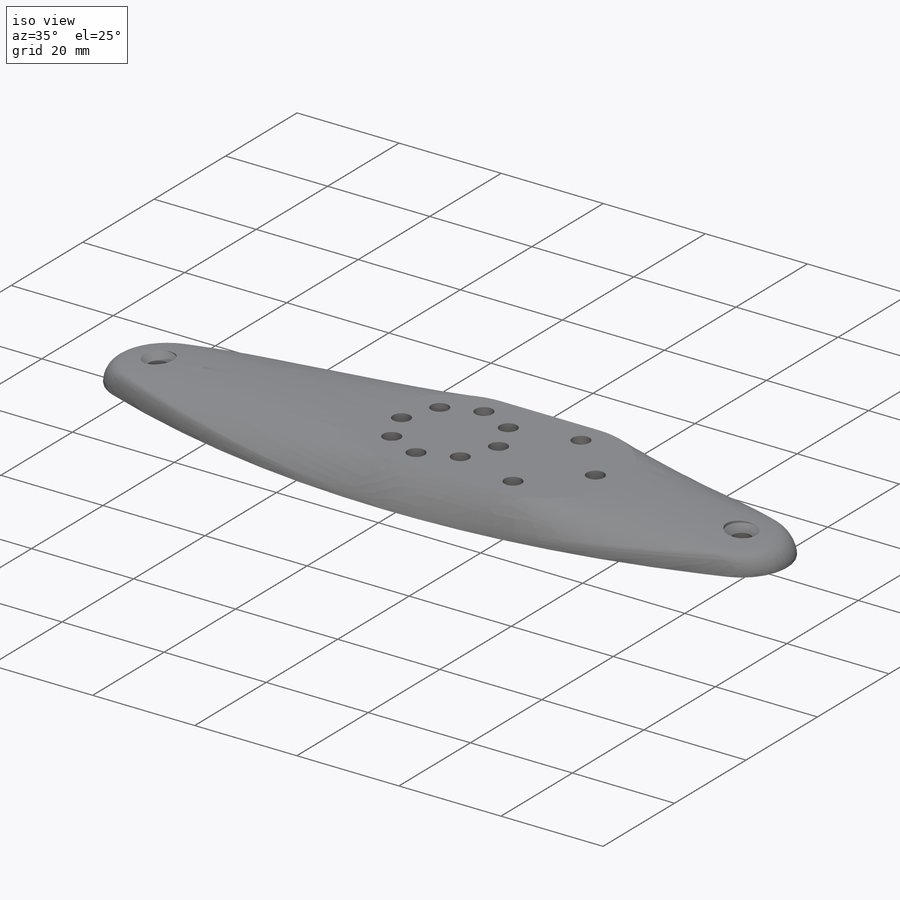
[diagram: iso view]
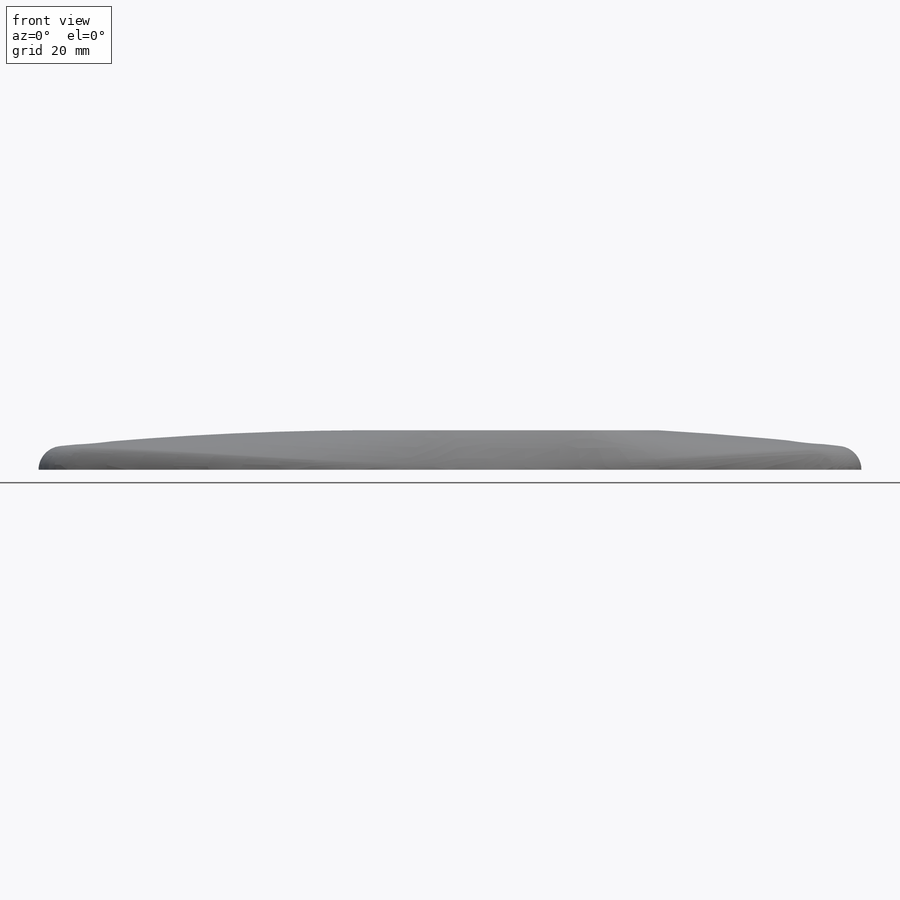
[diagram: front view]
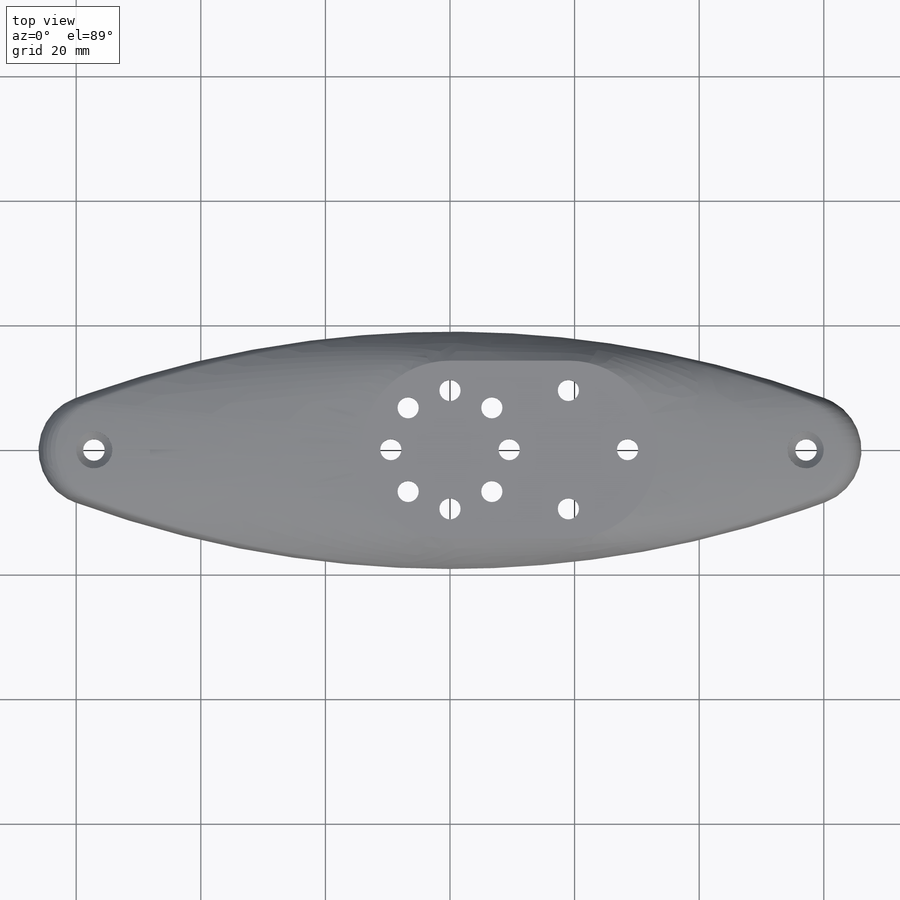
[diagram: top view]
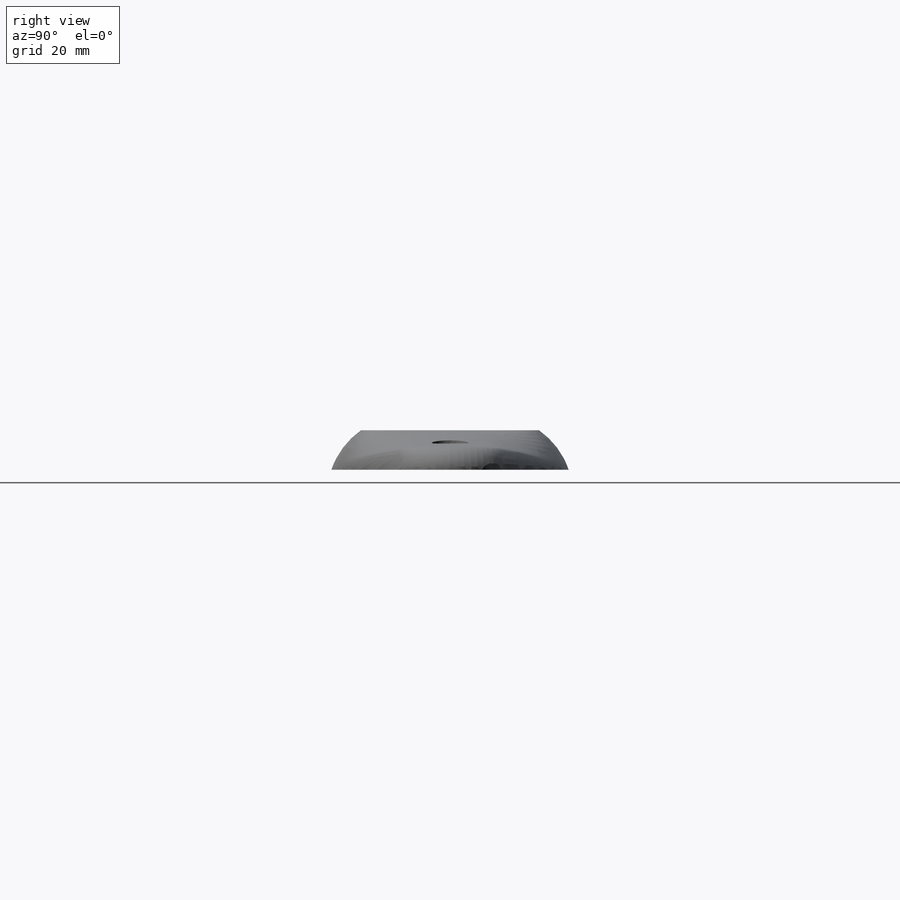
[diagram: right view]
SOLIDWORKS PART (.sldprt)
format: sldprt  version: not decoded by parser v0  size: 1,779,200 bytes
history: native  units: mm
features: sketch x16, plane x6, cut_extrude x4, fillet x3, shell x2, material x1, chamfer x1, hole x1, extrude x1 (+11 scaffold rows collapsed)
feature tree (46):
  scaffold x11  (default folders/planes/origin — collapsed)
  material  "PC High Viscosity"
  sketch  "Sketch1"  dims[D1=8.89mm D2=38.1mm D3=114.3mm D4=19.05mm]
  plane  "Plane1"  Offset=6.35mm
  sketch  "Sketch2"  dims[D1=28.575mm D2=19.05mm]
  sketch  "Sketch3"  dims[D1=12.7mm]
  sketch  "Sketch4"  dims[D1=508.0mm D2=3.81mm D3=3.81mm D4=2.54mm]
  plane  "Plane2"
  sketch  "Sketch8"
  sketch  "Sketch5"  dims[c1.D2=3.5mm c1.D5=3.5mm c1.D6=3.5mm c1.D7=3.5mm c1.D1=19.0mm c1.D3=57.15mm c1.D4=57.15mm c2.D6=28.575mm c2.D7=28.575mm c3.D6=~7.295478mm c4.D6=45.0deg]
  cut_extrude  "Cut-Extrude1"  [1 undecoded]
  plane  "Plane3"
  plane  "Plane5"
  sketch  "Sketch16"  dims[D1=2.0mm]
  sketch  "Sketch18"  dims[D1=2.0mm]
  plane  "Plane4"
  plane  "Plane6"
  sketch  "Sketch17"  dims[D1=1.2mm]
  cut_extrude  "Cut-Extrude7"  Depth=3mm
  sketch  "Sketch19"  dims[D1=1.2mm]
  cut_extrude  "Cut-Extrude8"  Depth=3mm
  chamfer  "Chamfer2"  Distance=1.2mm Angle=45deg
  shell  "Shell1"  Thickness=2mm
  sketch  "Sketch9"  dims[c1.D3=6.35mm c1.D5=3.175mm c1.D9=3.175mm c1.D12=~170.170425mm c1.D13=3.175mm c1.D2=6.35mm c2.D3=~15.172449mm c3.D3=~89.92471deg c4.D3=~16.472607mm c4.D4=6.35mm c4.D6=2.54mm c4.D7=2.54mm c4.D8=17.78mm c4.D10=6.35mm c4.D11=6.35mm c4.D12=4.7625mm c4.D1=4.064mm]
  hole  "CSK for M3 Flat Head Machine Screw1"  Diameter=3.4mm Depth=6.358391mm
  sketch  "Sketch11"
  sketch  "Sketch10"  dims[hole-wizard template sketch: 55 standard entries collapsed; hole parameters kept: c17.Thru Hole Depth=~6.358391mm c17.Near C'Sink Dia.=6.3mm c17.D4=~3.666174mm c17.Near C'Sink Angle=90.0deg c17.D1=0.5deg]
  sketch  "Sketch12"  dims[c1.D2=5.0mm c1.D4=~7.597253mm c1.D5=~7.966297mm c1.D1=22.0mm c1.D3=12.7mm c2.D4=1.5mm c2.D5=1.5mm]
  extrude  "Boss-Extrude1"  [1 undecoded]
  sketch  "Sketch20"  dims[c1.D1=19.0mm c1.D2=19.0mm c1.D3=19.0mm c2.D1=~33.83839mm c3.D1=45.0deg c4.D1=~23.463084mm c5.D1=~1.225339deg c6.D1=12.0mm c6.D2=14.0mm c7.D1=2.0mm c7.D3=2.0deg]
  sketch  "Sketch14"
  cut_extrude  "Cut-Extrude5"  Depth=4mm
  shell  "Draft2"  [1 undecoded]
  fillet  "Fillet1"  Radius=1mm
  fillet  "Fillet3"  Radius=1mm
  fillet  "Fillet4"  Radius=0.5mm
decode coverage: 22 of 28 modeling features carry decoded parameters
note: ~ marks probable driven/reference dimensions
note: 3 parameter values undecoded
summary: no parameter record found for 3 features
note: suppression state not decoded; provenance and decode notes live in map.json
